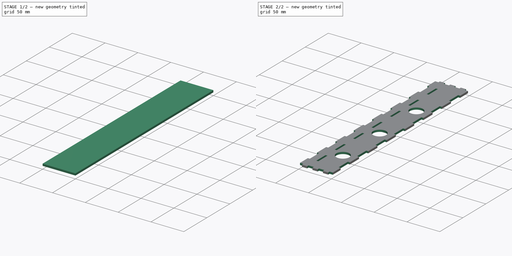
[diagram: build sequence overview — one tinted view per stage of 2, left to right]
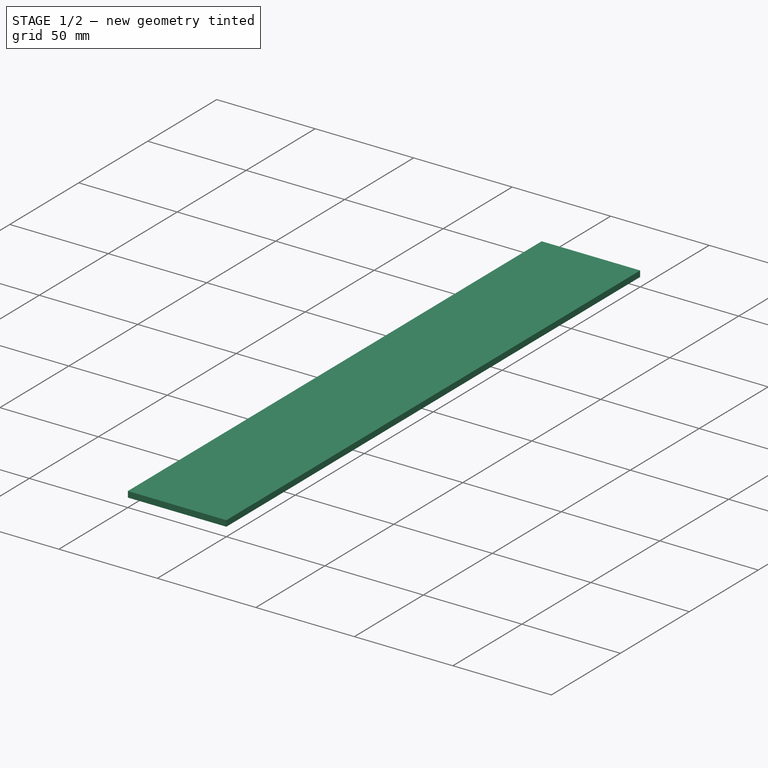
[diagram: stage 1 of 2 — iso view after this stage's code; geometry added in this stage tinted green]
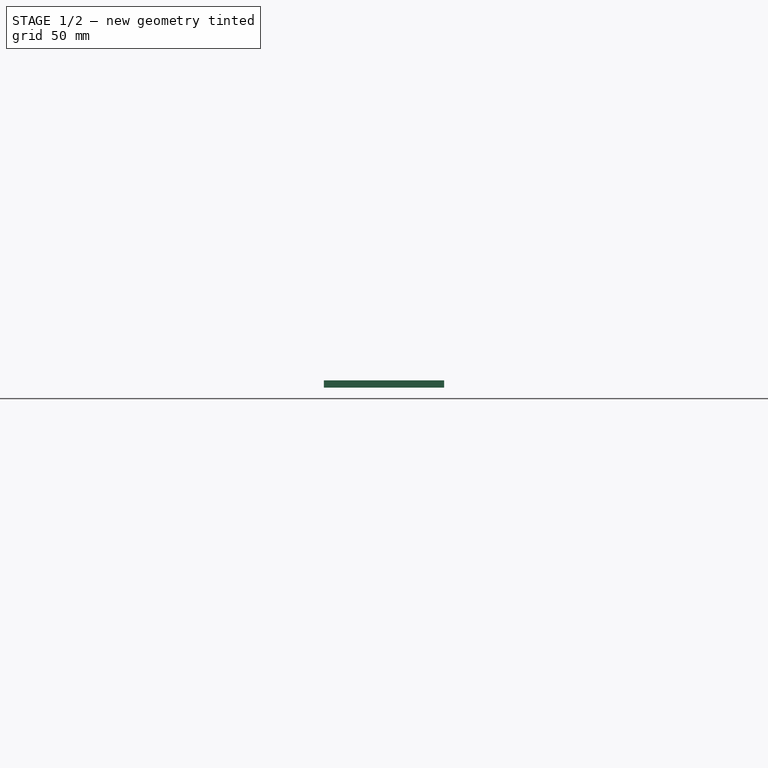
[diagram: stage 1 of 2 — front view after this stage's code; geometry added in this stage tinted green]
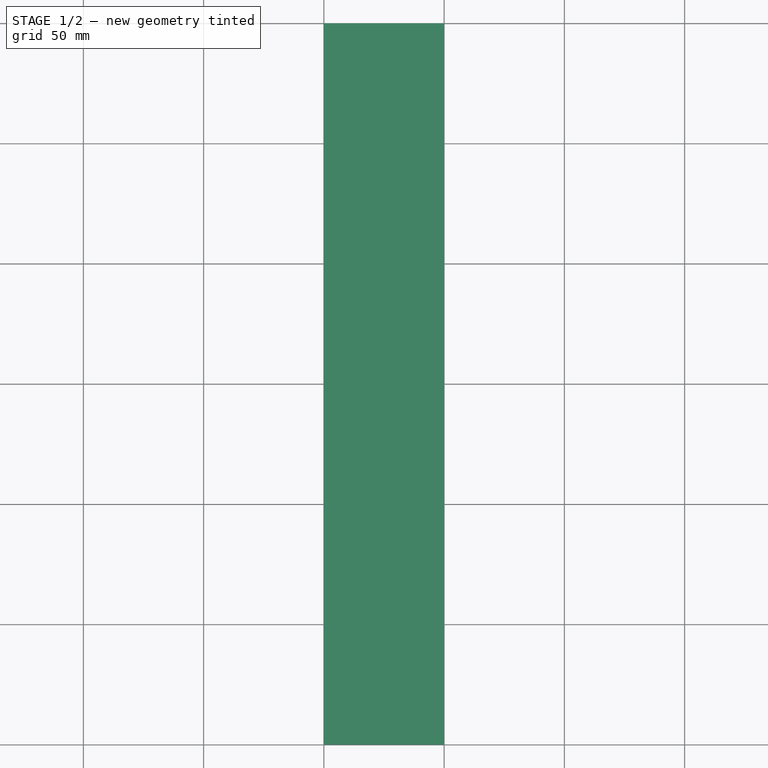
[diagram: stage 1 of 2 — top view after this stage's code; geometry added in this stage tinted green]
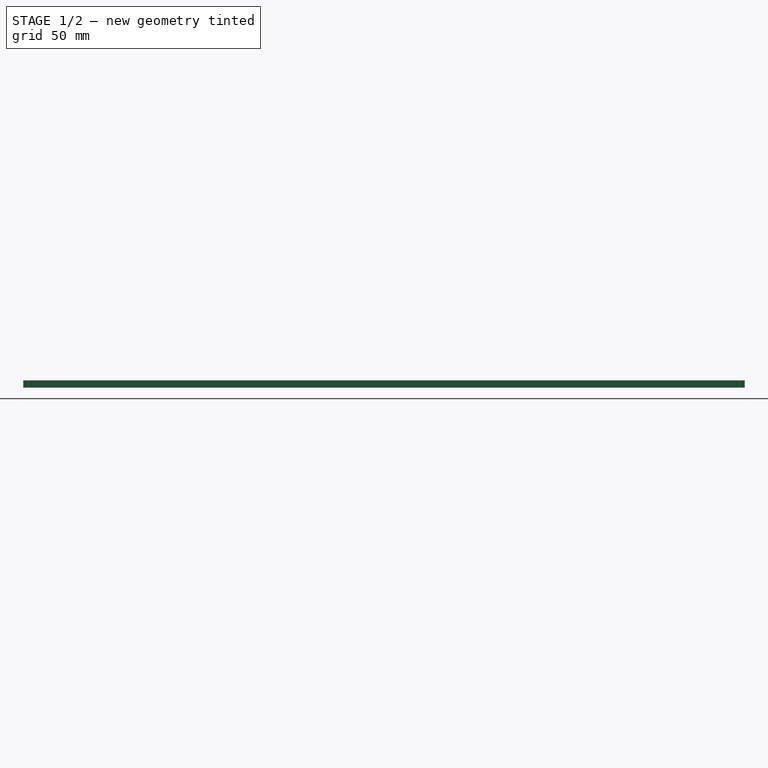
[diagram: stage 1 of 2 — right view after this stage's code; geometry added in this stage tinted green]
FCSTD DOCUMENT  (FreeCAD 0.19R24366 (Git))
Label: mdo-side
License: All rights reserved
LicenseURL: http://en.wikipedia.org/wiki/All_rights_reserved
objects: Sketcher::SketchObject×2, PartDesign::Pad×1, PartDesign::Pocket×1, PartDesign::Body×1, TechDraw::DrawSVGTemplate×1, TechDraw::DrawViewPart×1, TechDraw::DrawPage×1
note: 7 computed .brp shape members not serialized (recipe doc carries the construction recipe); baked Part::Feature solids carry a one-line shape summary decoded from their .brp

FEATURE [Sketcher::SketchObject] Sketch
  FullyConstrained = true
  MapMode = 5
  Support = -> [XY_Plane]
  sketch-geometry (4):
    g0: LineSegment StartX=0 StartY=0 StartZ=0 EndX=50 EndY=0 EndZ=0
    g1: LineSegment StartX=50 StartY=0 StartZ=0 EndX=50 EndY=300 EndZ=0
    g2: LineSegment StartX=50 StartY=300 StartZ=0 EndX=0 EndY=300 EndZ=0
    g3: LineSegment StartX=0 StartY=300 StartZ=0 EndX=0 EndY=0 EndZ=0
  constraints (11):
    c: Coincident(g0,g1)
    c: Coincident(g1,g2)
    c: Coincident(g2,g3)
    c: Coincident(g3,g0)
    c: Horizontal(g0)
    c: Horizontal(g2)
    c: Vertical(g1)
    c: Vertical(g3)
    c: Coincident(g0,g-1)
    c: DistanceX(g0,g0) = 50
    c: DistanceY(g1,g1) = 300
FEATURE [PartDesign::Pad] Pad
  Direction = (1,1,1)
  Length = 3
  Length2 = 100
  Profile = -> Sketch
  Type = 0
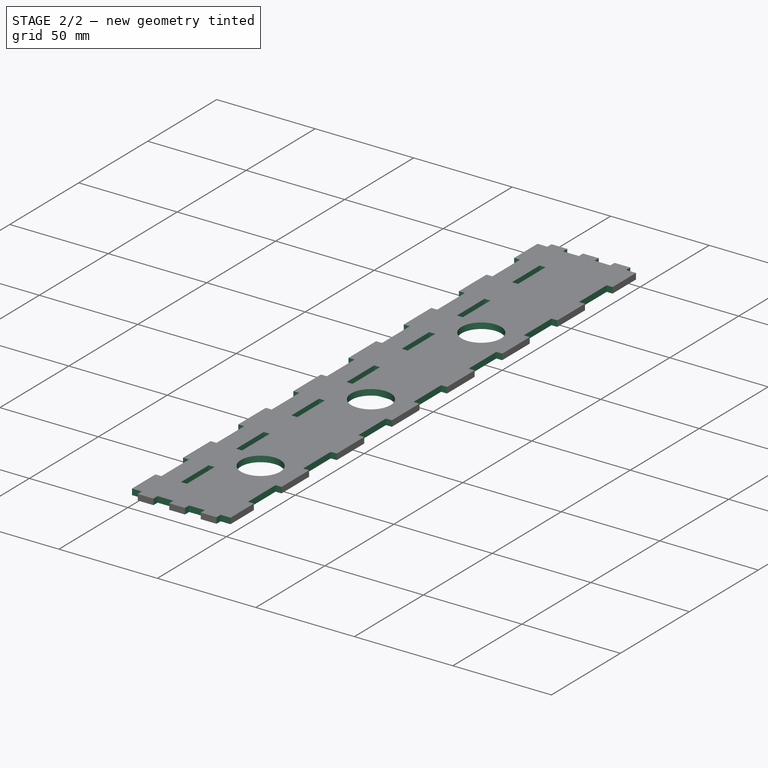
[diagram: stage 2 of 2 — iso view after this stage's code; geometry added in this stage tinted green]
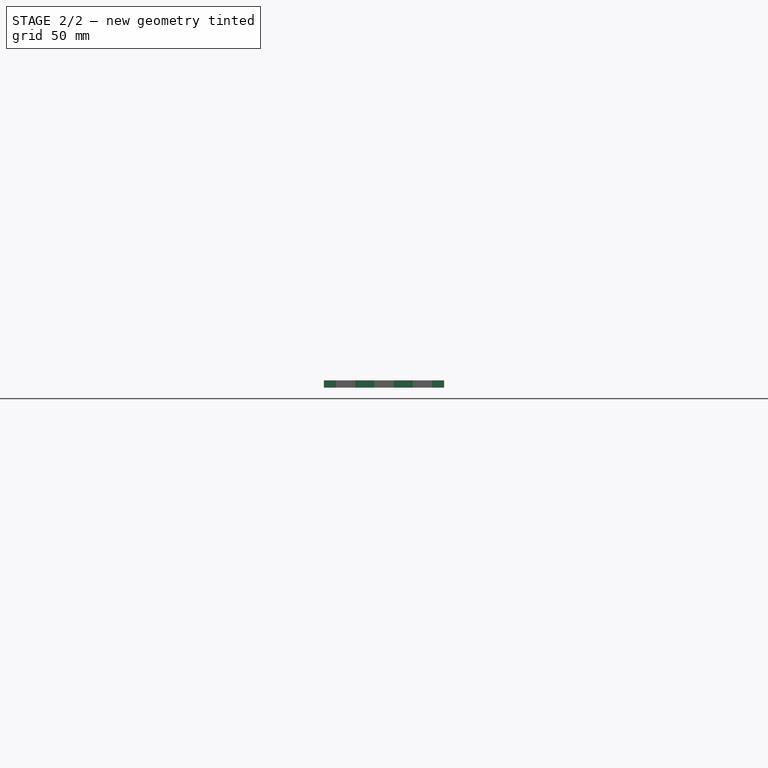
[diagram: stage 2 of 2 — front view after this stage's code; geometry added in this stage tinted green]
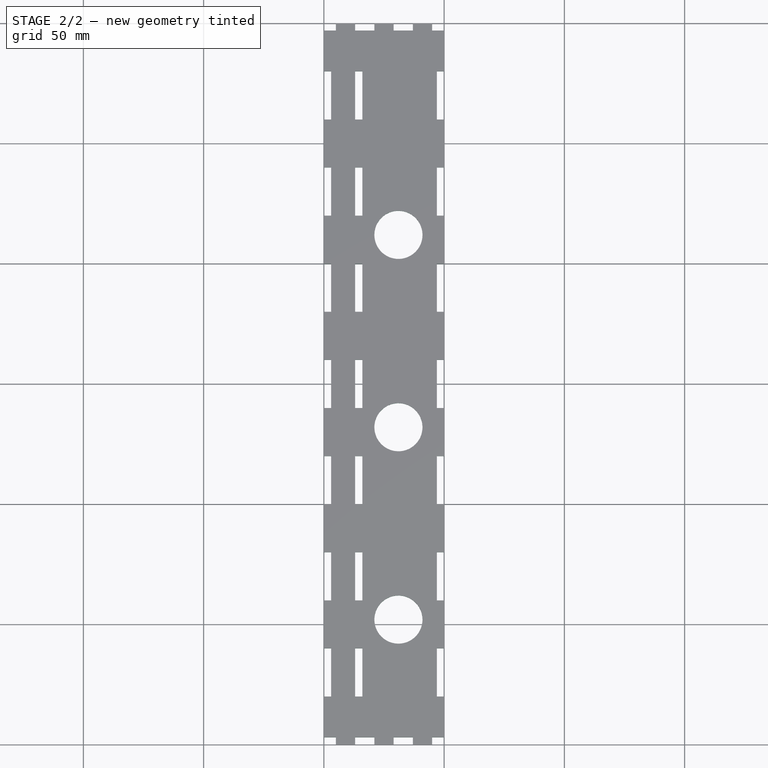
[diagram: stage 2 of 2 — top view after this stage's code; geometry added in this stage tinted green]
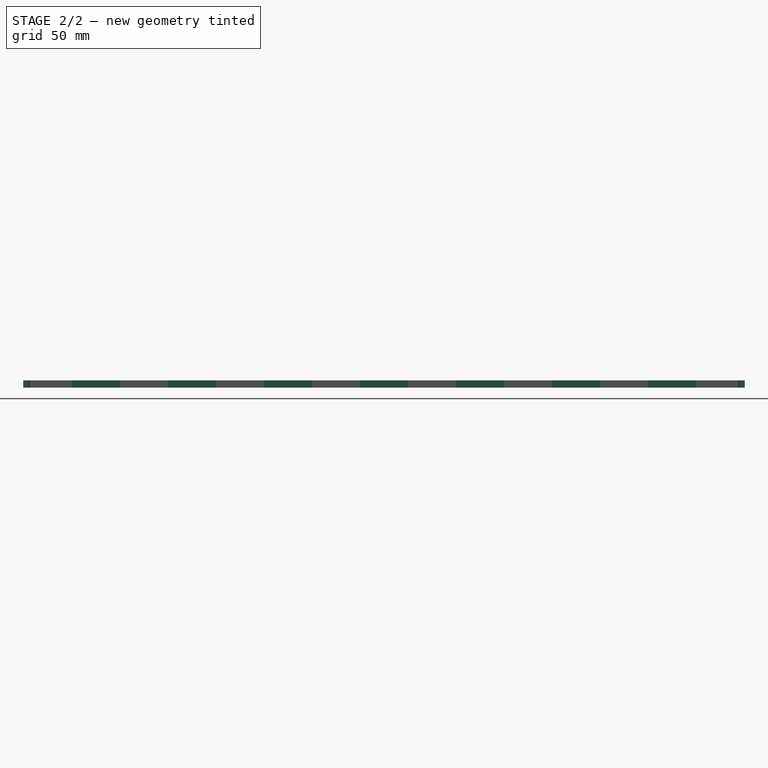
[diagram: stage 2 of 2 — right view after this stage's code; geometry added in this stage tinted green]
FEATURE [Sketcher::SketchObject] Sketch001
  FullyConstrained = true
  MapMode = 5
  Placement = pos=(0,0,3) rot=(0,0,1;0rad)
  Support = -> [Pad]
  sketch-geometry (145):
    g0: LineSegment StartX=0 StartY=40 StartZ=0 EndX=3 EndY=40 EndZ=0
    g1: LineSegment StartX=3 StartY=40 StartZ=0 EndX=3 EndY=20 EndZ=0
    g2: LineSegment StartX=3 StartY=20 StartZ=0 EndX=0 EndY=20 EndZ=0
    g3: LineSegment StartX=0 StartY=20 StartZ=0 EndX=0 EndY=40 EndZ=0
    g4: LineSegment StartX=2.7e-15 StartY=80 StartZ=0 EndX=3 EndY=80 EndZ=0
    g5: LineSegment StartX=3 StartY=80 StartZ=0 EndX=3 EndY=60 EndZ=0
    g6: LineSegment StartX=3 StartY=60 StartZ=0 EndX=2.7e-15 EndY=60 EndZ=0
    g7: LineSegment StartX=2.7e-15 StartY=60 StartZ=0 EndX=2.7e-15 EndY=80 EndZ=0
    g8: LineSegment StartX=0 StartY=40 StartZ=0 EndX=2.7e-15 EndY=80 EndZ=0
    g9: LineSegment StartX=4.9e-15 StartY=120 StartZ=0 EndX=3 EndY=120 EndZ=0
    g10: LineSegment StartX=3 StartY=120 StartZ=0 EndX=3 EndY=100 EndZ=0
    g11: LineSegment StartX=3 StartY=100 StartZ=0 EndX=4.9e-15 EndY=100 EndZ=0
    g12: LineSegment StartX=4.9e-15 StartY=100 StartZ=0 EndX=4.9e-15 EndY=120 EndZ=0
    g13: LineSegment StartX=2.7e-15 StartY=80 StartZ=0 EndX=4.9e-15 EndY=120 EndZ=0
    g14: LineSegment StartX=7.5e-15 StartY=160 StartZ=0 EndX=3 EndY=160 EndZ=0
    g15: LineSegment StartX=3 StartY=160 StartZ=0 EndX=3 EndY=140 EndZ=0
    g16: LineSegment StartX=3 StartY=140 StartZ=0 EndX=7.5e-15 EndY=140 EndZ=0
    g17: LineSegment StartX=7.5e-15 StartY=140 StartZ=0 EndX=7.5e-15 EndY=160 EndZ=0
    g18: LineSegment StartX=4.9e-15 StartY=120 StartZ=0 EndX=7.5e-15 EndY=160 EndZ=0
    g19: LineSegment StartX=9.8e-15 StartY=200 StartZ=0 EndX=3 EndY=200 EndZ=0
    g20: LineSegment StartX=3 StartY=200 StartZ=0 EndX=3 EndY=180 EndZ=0
    g21: LineSegment StartX=3 StartY=180 StartZ=0 EndX=9.8e-15 EndY=180 EndZ=0
    g22: LineSegment StartX=9.8e-15 StartY=180 StartZ=0 EndX=9.8e-15 EndY=200 EndZ=0
    g23: LineSegment StartX=7.5e-15 StartY=160 StartZ=0 EndX=9.8e-15 EndY=200 EndZ=0
    g24: LineSegment StartX=1.22e-14 StartY=240 StartZ=0 EndX=3 EndY=240 EndZ=0
    g25: LineSegment StartX=3 StartY=240 StartZ=0 EndX=3 EndY=220 EndZ=0
    g26: LineSegment StartX=3 StartY=220 StartZ=0 EndX=1.24e-14 EndY=220 EndZ=0
    g27: LineSegment StartX=1.22e-14 StartY=220 StartZ=0 EndX=1.22e-14 EndY=240 EndZ=0
    g28: LineSegment StartX=9.8e-15 StartY=200 StartZ=0 EndX=1.22e-14 EndY=240 EndZ=0
    g29: LineSegment StartX=1.47e-14 StartY=280 StartZ=0 EndX=3 EndY=280 EndZ=0
    g30: LineSegment StartX=3 StartY=280 StartZ=0 EndX=3 EndY=260 EndZ=0
    g31: LineSegment StartX=3 StartY=260 StartZ=0 EndX=1.47e-14 EndY=260 EndZ=0
    g32: LineSegment StartX=1.47e-14 StartY=260 StartZ=0 EndX=1.47e-14 EndY=280 EndZ=0
    g33: LineSegment StartX=1.22e-14 StartY=240 StartZ=0 EndX=1.47e-14 EndY=280 EndZ=0
    g34: LineSegment StartX=13 StartY=40 StartZ=0 EndX=16 EndY=40 EndZ=0
    g35: LineSegment StartX=16 StartY=40 StartZ=0 EndX=16 EndY=20 EndZ=0
    g36: LineSegment StartX=16 StartY=20 StartZ=0 EndX=13 EndY=20 EndZ=0
    g37: LineSegment StartX=13 StartY=20 StartZ=0 EndX=13 EndY=40 EndZ=0
    g38: LineSegment StartX=13 StartY=80 StartZ=0 EndX=16 EndY=80 EndZ=0
    g39: LineSegment StartX=16 StartY=80 StartZ=0 EndX=16 EndY=60 EndZ=0
    g40: LineSegment StartX=16 StartY=60 StartZ=0 EndX=13 EndY=60 EndZ=0
    g41: LineSegment StartX=13 StartY=60 StartZ=0 EndX=13 EndY=80 EndZ=0
    g42: LineSegment StartX=13 StartY=40 StartZ=0 EndX=13 EndY=80 EndZ=0
    g43: LineSegment StartX=13 StartY=120 StartZ=0 EndX=16 EndY=120 EndZ=0
    g44: LineSegment StartX=16 StartY=120 StartZ=0 EndX=16 EndY=100 EndZ=0
    g45: LineSegment StartX=16 StartY=100 StartZ=0 EndX=13 EndY=100 EndZ=0
    g46: LineSegment StartX=13 StartY=100 StartZ=0 EndX=13 EndY=120 EndZ=0
    g47: LineSegment StartX=13 StartY=80 StartZ=0 EndX=13 EndY=120 EndZ=0
    g48: LineSegment StartX=13 StartY=160 StartZ=0 EndX=16 EndY=160 EndZ=0
    g49: LineSegment StartX=16 StartY=160 StartZ=0 EndX=16 EndY=140 EndZ=0
    g50: LineSegment StartX=16 StartY=140 StartZ=0 EndX=13 EndY=140 EndZ=0
    g51: LineSegment StartX=13 StartY=140 StartZ=0 EndX=13 EndY=160 EndZ=0
    g52: LineSegment StartX=13 StartY=120 StartZ=0 EndX=13 EndY=160 EndZ=0
    g53: LineSegment StartX=13 StartY=200 StartZ=0 EndX=16 EndY=200 EndZ=0
    g54: LineSegment StartX=16 StartY=200 StartZ=0 EndX=16 EndY=180 EndZ=0
    g55: LineSegment StartX=16 StartY=180 StartZ=0 EndX=13 EndY=180 EndZ=0
    g56: LineSegment StartX=13 StartY=180 StartZ=0 EndX=13 EndY=200 EndZ=0
    g57: LineSegment StartX=13 StartY=160 StartZ=0 EndX=13 EndY=200 EndZ=0
    g58: LineSegment StartX=13 StartY=240 StartZ=0 EndX=16 EndY=240 EndZ=0
    g59: LineSegment StartX=16 StartY=240 StartZ=0 EndX=16 EndY=220 EndZ=0
    g60: LineSegment StartX=16 StartY=220 StartZ=0 EndX=13 EndY=220 EndZ=0
    g61: LineSegment StartX=13 StartY=220 StartZ=0 EndX=13 EndY=240 EndZ=0
    g62: LineSegment StartX=13 StartY=200 StartZ=0 EndX=13 EndY=240 EndZ=0
    g63: LineSegment StartX=13 StartY=280 StartZ=0 EndX=16 EndY=280 EndZ=0
    g64: LineSegment StartX=16 StartY=280 StartZ=0 EndX=16 EndY=260 EndZ=0
    g65: LineSegment StartX=16 StartY=260 StartZ=0 EndX=13 EndY=260 EndZ=0
    g66: LineSegment StartX=13 StartY=260 StartZ=0 EndX=13 EndY=280 EndZ=0
    g67: LineSegment StartX=13 StartY=240 StartZ=0 EndX=13 EndY=280 EndZ=0
    g68: LineSegment StartX=47 StartY=40 StartZ=0 EndX=50 EndY=40 EndZ=0
    g69: LineSegment StartX=50 StartY=40 StartZ=0 EndX=50 EndY=20 EndZ=0
    g70: LineSegment StartX=50 StartY=20 StartZ=0 EndX=47 EndY=20 EndZ=0
    g71: LineSegment StartX=47 StartY=20 StartZ=0 EndX=47 EndY=40 EndZ=0
    g72: LineSegment StartX=47 StartY=80 StartZ=0 EndX=50 EndY=80 EndZ=0
    g73: LineSegment StartX=50 StartY=80 StartZ=0 EndX=50 EndY=60 EndZ=0
    g74: LineSegment StartX=50 StartY=60 StartZ=0 EndX=47 EndY=60 EndZ=0
    g75: LineSegment StartX=47 StartY=60 StartZ=0 EndX=47 EndY=80 EndZ=0
    g76: LineSegment StartX=47 StartY=40 StartZ=0 EndX=47 EndY=80 EndZ=0
    g77: LineSegment StartX=47 StartY=120 StartZ=0 EndX=50 EndY=120 EndZ=0
    g78: LineSegment StartX=50 StartY=120 StartZ=0 EndX=50 EndY=100 EndZ=0
    g79: LineSegment StartX=50 StartY=100 StartZ=0 EndX=47 EndY=100 EndZ=0
    g80: LineSegment StartX=47 StartY=100 StartZ=0 EndX=47 EndY=120 EndZ=0
    g81: LineSegment StartX=47 StartY=80 StartZ=0 EndX=47 EndY=120 EndZ=0
    g82: LineSegment StartX=47 StartY=160 StartZ=0 EndX=50 EndY=160 EndZ=0
    g83: LineSegment StartX=50 StartY=160 StartZ=0 EndX=50 EndY=140 EndZ=0
    g84: LineSegment StartX=50 StartY=140 StartZ=0 EndX=47 EndY=140 EndZ=0
    g85: LineSegment StartX=47 StartY=140 StartZ=0 EndX=47 EndY=160 EndZ=0
    g86: LineSegment StartX=47 StartY=120 StartZ=0 EndX=47 EndY=160 EndZ=0
    g87: LineSegment StartX=47 StartY=200 StartZ=0 EndX=50 EndY=200 EndZ=0
    g88: LineSegment StartX=50 StartY=200 StartZ=0 EndX=50 EndY=180 EndZ=0
    g89: LineSegment StartX=50 StartY=180 StartZ=0 EndX=47 EndY=180 EndZ=0
    g90: LineSegment StartX=47 StartY=180 StartZ=0 EndX=47 EndY=200 EndZ=0
    g91: LineSegment StartX=47 StartY=160 StartZ=0 EndX=47 EndY=200 EndZ=0
    g92: LineSegment StartX=47 StartY=240 StartZ=0 EndX=50 EndY=240 EndZ=0
    g93: LineSegment StartX=50 StartY=240 StartZ=0 EndX=50 EndY=220 EndZ=0
    g94: LineSegment StartX=50 StartY=220 StartZ=0 EndX=47 EndY=220 EndZ=0
    g95: LineSegment StartX=47 StartY=220 StartZ=0 EndX=47 EndY=240 EndZ=0
    g96: LineSegment StartX=47 StartY=200 StartZ=0 EndX=47 EndY=240 EndZ=0
    g97: LineSegment StartX=47 StartY=280 StartZ=0 EndX=50 EndY=280 EndZ=0
    g98: LineSegment StartX=50 StartY=280 StartZ=0 EndX=50 EndY=260 EndZ=0
    g99: LineSegment StartX=50 StartY=260 StartZ=0 EndX=47 EndY=260 EndZ=0
    g100: LineSegment StartX=47 StartY=260 StartZ=0 EndX=47 EndY=280 EndZ=0
    g101: LineSegment StartX=47 StartY=240 StartZ=0 EndX=47 EndY=280 EndZ=0
    g102: LineSegment StartX=-3 StartY=3 StartZ=0 EndX=5 EndY=3 EndZ=0
    g103: LineSegment StartX=5 StartY=3 StartZ=0 EndX=5 EndY=0 EndZ=0
    g104: LineSegment StartX=5 StartY=0 StartZ=0 EndX=-3 EndY=0 EndZ=0
    g105: LineSegment StartX=-3 StartY=0 StartZ=0 EndX=-3 EndY=3 EndZ=0
    g106: LineSegment StartX=13 StartY=3 StartZ=0 EndX=21 EndY=3 EndZ=0
    g107: LineSegment StartX=21 StartY=3 StartZ=0 EndX=21 EndY=0 EndZ=0
    g108: LineSegment StartX=21 StartY=0 StartZ=0 EndX=13 EndY=0 EndZ=0
    g109: LineSegment StartX=13 StartY=0 StartZ=0 EndX=13 EndY=3 EndZ=0
    g110: LineSegment StartX=-3 StartY=3 StartZ=0 EndX=13 EndY=3 EndZ=0
    g111: LineSegment StartX=29 StartY=3 StartZ=0 EndX=37 EndY=3 EndZ=0
    g112: LineSegment StartX=37 StartY=3 StartZ=0 EndX=37 EndY=0 EndZ=0
    g113: LineSegment StartX=37 StartY=0 StartZ=0 EndX=29 EndY=0 EndZ=0
    g114: LineSegment StartX=29 StartY=0 StartZ=0 EndX=29 EndY=3 EndZ=0
    g115: LineSegment StartX=13 StartY=3 StartZ=0 EndX=29 EndY=3 EndZ=0
    g116: LineSegment StartX=45 StartY=3 StartZ=0 EndX=53 EndY=3 EndZ=0
    g117: LineSegment StartX=53 StartY=3 StartZ=0 EndX=53 EndY=0 EndZ=0
    g118: LineSegment StartX=53 StartY=0 StartZ=0 EndX=45 EndY=0 EndZ=0
    g119: LineSegment StartX=45 StartY=0 StartZ=0 EndX=45 EndY=3 EndZ=0
    g120: LineSegment StartX=29 StartY=3 StartZ=0 EndX=45 EndY=3 EndZ=0
    g121: LineSegment StartX=-3 StartY=300 StartZ=0 EndX=5 EndY=300 EndZ=0
    g122: LineSegment StartX=5 StartY=300 StartZ=0 EndX=5 EndY=297 EndZ=0
    g123: LineSegment StartX=5 StartY=297 StartZ=0 EndX=-3 EndY=297 EndZ=0
    g124: LineSegment StartX=-3 StartY=297 StartZ=0 EndX=-3 EndY=300 EndZ=0
    g125: LineSegment StartX=13 StartY=300 StartZ=0 EndX=21 EndY=300 EndZ=0
    g126: LineSegment StartX=21 StartY=300 StartZ=0 EndX=21 EndY=297 EndZ=0
    g127: LineSegment StartX=21 StartY=297 StartZ=0 EndX=13 EndY=297 EndZ=0
    g128: LineSegment StartX=13 StartY=297 StartZ=0 EndX=13 EndY=300 EndZ=0
    g129: LineSegment StartX=-3 StartY=300 StartZ=0 EndX=13 EndY=300 EndZ=0
    g130: LineSegment StartX=29 StartY=300 StartZ=0 EndX=37 EndY=300 EndZ=0
    g131: LineSegment StartX=37 StartY=300 StartZ=0 EndX=37 EndY=297 EndZ=0
    g132: LineSegment StartX=37 StartY=297 StartZ=0 EndX=29 EndY=297 EndZ=0
    g133: LineSegment StartX=29 StartY=297 StartZ=0 EndX=29 EndY=300 EndZ=0
    g134: LineSegment StartX=13 StartY=300 StartZ=0 EndX=29 EndY=300 EndZ=0
    g135: LineSegment StartX=45 StartY=300 StartZ=0 EndX=53 EndY=300 EndZ=0
    g136: LineSegment StartX=53 StartY=300 StartZ=0 EndX=53 EndY=297 EndZ=0
    g137: LineSegment StartX=53 StartY=297 StartZ=0 EndX=45 EndY=297 EndZ=0
    g138: LineSegment StartX=45 StartY=297 StartZ=0 EndX=45 EndY=300 EndZ=0
    g139: LineSegment StartX=29 StartY=300 StartZ=0 EndX=45 EndY=300 EndZ=0
    g140: Circle CenterX=31 CenterY=52 CenterZ=0 NormalX=0 NormalY=0 NormalZ=1 AngleXU=0 Radius=10
    g141: Circle CenterX=31 CenterY=132 CenterZ=0 NormalX=0 NormalY=0 NormalZ=1 AngleXU=0 Radius=10
    g142: LineSegment StartX=31 StartY=52 StartZ=0 EndX=31 EndY=132 EndZ=0
    g143: Circle CenterX=31 CenterY=212 CenterZ=0 NormalX=0 NormalY=0 NormalZ=1 AngleXU=0 Radius=10
    g144: LineSegment StartX=31 StartY=132 StartZ=0 EndX=31 EndY=212 EndZ=0
  constraints (409):
    c: Coincident(g0,g1)
    c: Coincident(g1,g2)
    c: Coincident(g2,g3)
    c: Coincident(g3,g0)
    c: Horizontal(g0)
    c: Horizontal(g2)
    c: Vertical(g1)
    c: Vertical(g3)
    c: PointOnObject(g0,g-2)
    c: DistanceX(g2,g2) = 3
    c: DistanceY(g1,g1) = 20
    c: Coincident(g4,g5)
    c: Coincident(g5,g6)
    c: Coincident(g6,g7)
    c: Coincident(g7,g4)
    c: Horizontal(g4)
    c: Horizontal(g6)
    c: Vertical(g5)
    c: Vertical(g7)
    c: Equal(g2,g6) = 3
    c: Equal(g1,g5) = 20
    c: Coincident(g0,g8)
    c: Coincident(g4,g8)
    c: Distance(g8) = 40
    c: Angle(g8) = 1.5708
    c: Coincident(g9,g10)
    c: Coincident(g10,g11)
    c: Coincident(g11,g12)
    c: Coincident(g12,g9)
    c: Horizontal(g9)
    c: Horizontal(g11)
    c: Vertical(g10)
    c: Vertical(g12)
    c: Equal(g2,g11) = 3
    c: Equal(g1,g10) = 20
    c: Coincident(g4,g13)
    c: Coincident(g9,g13)
    c: Equal(g8,g13)
    c: Parallel(g13,g8)
    c: Coincident(g14,g15)
    c: Coincident(g15,g16)
    c: Coincident(g16,g17)
    c: Coincident(g17,g14)
    c: Horizontal(g14)
    c: Horizontal(g16)
    c: Vertical(g15)
    c: Vertical(g17)
    c: Equal(g2,g16) = 3
    c: Equal(g1,g15) = 20
    c: Coincident(g9,g18)
    c: Coincident(g14,g18)
    c: Equal(g8,g18)
    c: Parallel(g18,g8)
    c: Coincident(g19,g20)
    c: Coincident(g20,g21)
    c: Coincident(g21,g22)
    c: Coincident(g22,g19)
    c: Horizontal(g19)
    c: Horizontal(g21)
    c: Vertical(g20)
    c: Vertical(g22)
    c: Equal(g2,g21) = 3
    c: Equal(g1,g20) = 20
    c: Coincident(g14,g23)
    c: Coincident(g19,g23)
    c: Equal(g8,g23)
    c: Parallel(g23,g8)
    c: Coincident(g24,g25)
    c: Coincident(g25,g26)
    c: Coincident(g26,g27)
    c: Coincident(g27,g24)
    c: Horizontal(g24)
    c: Horizontal(g26)
    c: Vertical(g25)
    c: Vertical(g27)
    c: Equal(g2,g26) = 3
    c: Equal(g1,g25) = 20
    c: Coincident(g19,g28)
    c: Coincident(g24,g28)
    c: Equal(g8,g28)
    c: Parallel(g28,g8)
    c: Coincident(g29,g30)
    c: Coincident(g30,g31)
    c: Coincident(g31,g32)
    c: Coincident(g32,g29)
    c: Horizontal(g29)
    c: Horizontal(g31)
    c: Vertical(g30)
    c: Vertical(g32)
    c: Equal(g2,g31) = 3
    c: Equal(g1,g30) = 20
    c: Coincident(g24,g33)
    c: Coincident(g29,g33)
    c: Equal(g8,g33)
    c: Parallel(g33,g8)
    c: Coincident(g34,g35)
    c: Coincident(g35,g36)
    c: Coincident(g36,g37)
    c: Coincident(g37,g34)
    c: Horizontal(g34)
    c: Horizontal(g36)
    c: Vertical(g35)
    c: Vertical(g37)
    c: Equal(g2,g36) = 3
    c: Equal(g1,g35) = 20
    c: Coincident(g38,g39)
    c: Coincident(g39,g40)
    c: Coincident(g40,g41)
    c: Coincident(g41,g38)
    c: Horizontal(g38)
    c: Horizontal(g40)
    c: Vertical(g39)
    c: Vertical(g41)
    c: Equal(g36,g40) = 3
    c: Equal(g35,g39) = 20
    c: Coincident(g34,g42)
    c: Coincident(g38,g42)
    c: Equal(g8,g42) = 40
    c: Parallel(g8,g42) = 1.5708
    c: Coincident(g43,g44)
    c: Coincident(g44,g45)
    c: Coincident(g45,g46)
    c: Coincident(g46,g43)
    c: Horizontal(g43)
    c: Horizontal(g45)
    c: Vertical(g44)
    c: Vertical(g46)
    c: Equal(g36,g45) = 3
    c: Equal(g35,g44) = 20
    c: Coincident(g38,g47)
    c: Coincident(g43,g47)
    c: Equal(g42,g47)
    c: Parallel(g47,g42)
    c: Coincident(g48,g49)
    c: Coincident(g49,g50)
    c: Coincident(g50,g51)
    c: Coincident(g51,g48)
    c: Horizontal(g48)
    c: Horizontal(g50)
    c: Vertical(g49)
    c: Vertical(g51)
    c: Equal(g36,g50) = 3
    c: Equal(g35,g49) = 20
    c: Coincident(g43,g52)
    c: Coincident(g48,g52)
    c: Equal(g42,g52)
    c: Parallel(g52,g42)
    c: Coincident(g53,g54)
    c: Coincident(g54,g55)
    c: Coincident(g55,g56)
    c: Coincident(g56,g53)
    c: Horizontal(g53)
    c: Horizontal(g55)
    c: Vertical(g54)
    c: Vertical(g56)
    c: Equal(g36,g55) = 3
    c: Equal(g35,g54) = 20
    c: Coincident(g48,g57)
    c: Coincident(g53,g57)
    c: Equal(g42,g57)
    c: Parallel(g57,g42)
    c: Coincident(g58,g59)
    c: Coincident(g59,g60)
    c: Coincident(g60,g61)
    c: Coincident(g61,g58)
    c: Horizontal(g58)
    c: Horizontal(g60)
    c: Vertical(g59)
    c: Vertical(g61)
    c: Equal(g36,g60) = 3
    c: Equal(g35,g59) = 20
    c: Coincident(g53,g62)
    c: Coincident(g58,g62)
    c: Equal(g42,g62)
    c: Parallel(g62,g42)
    c: Coincident(g63,g64)
    c: Coincident(g64,g65)
    c: Coincident(g65,g66)
    c: Coincident(g66,g63)
    c: Horizontal(g63)
    c: Horizontal(g65)
    c: Vertical(g64)
    c: Vertical(g66)
    c: Equal(g36,g65) = 3
    c: Equal(g35,g64) = 20
    c: Coincident(g58,g67)
    c: Coincident(g63,g67)
    c: Equal(g42,g67)
    c: Parallel(g67,g42)
    c: DistanceY(g29,g63) = 0
    c: DistanceX(g29,g63) = 10
    c: Coincident(g68,g69)
    c: Coincident(g69,g70)
    c: Coincident(g70,g71)
    c: Coincident(g71,g68)
    c: Horizontal(g68)
    c: Horizontal(g70)
    c: Vertical(g69)
    c: Vertical(g71)
    c: Equal(g2,g70) = 3
    c: Equal(g1,g69) = 20
    c: Coincident(g72,g73)
    c: Coincident(g73,g74)
    c: Coincident(g74,g75)
    c: Coincident(g75,g72)
    c: Horizontal(g72)
    c: Horizontal(g74)
    c: Vertical(g73)
    c: Vertical(g75)
    c: Equal(g70,g74) = 3
    c: Equal(g69,g73) = 20
    c: Coincident(g68,g76)
    c: Coincident(g72,g76)
    c: Equal(g8,g76) = 40
    c: Parallel(g8,g76) = 1.5708
    c: Coincident(g77,g78)
    c: Coincident(g78,g79)
    c: Coincident(g79,g80)
    c: Coincident(g80,g77)
    c: Horizontal(g77)
    c: Horizontal(g79)
    c: Vertical(g78)
    c: Vertical(g80)
    c: Equal(g70,g79) = 3
    c: Equal(g69,g78) = 20
    c: Coincident(g72,g81)
    c: Coincident(g77,g81)
    c: Equal(g76,g81)
    c: Parallel(g81,g76)
    c: Coincident(g82,g83)
    c: Coincident(g83,g84)
    c: Coincident(g84,g85)
    c: Coincident(g85,g82)
    c: Horizontal(g82)
    c: Horizontal(g84)
    c: Vertical(g83)
    c: Vertical(g85)
    c: Equal(g70,g84) = 3
    c: Equal(g69,g83) = 20
    c: Coincident(g77,g86)
    c: Coincident(g82,g86)
    c: Equal(g76,g86)
    c: Parallel(g86,g76)
    c: Coincident(g87,g88)
    c: Coincident(g88,g89)
    c: Coincident(g89,g90)
    c: Coincident(g90,g87)
    c: Horizontal(g87)
    c: Horizontal(g89)
    c: Vertical(g88)
    c: Vertical(g90)
    c: Equal(g70,g89) = 3
    c: Equal(g69,g88) = 20
    c: Coincident(g82,g91)
    c: Coincident(g87,g91)
    c: Equal(g76,g91)
    c: Parallel(g91,g76)
    c: Coincident(g92,g93)
    c: Coincident(g93,g94)
    c: Coincident(g94,g95)
    c: Coincident(g95,g92)
    c: Horizontal(g92)
    c: Horizontal(g94)
    c: Vertical(g93)
    c: Vertical(g95)
    c: Equal(g70,g94) = 3
    c: Equal(g69,g93) = 20
    c: Coincident(g87,g96)
    c: Coincident(g92,g96)
    c: Equal(g76,g96)
    c: Parallel(g96,g76)
    c: Coincident(g97,g98)
    c: Coincident(g98,g99)
    c: Coincident(g99,g100)
    c: Coincident(g100,g97)
    c: Horizontal(g97)
    c: Horizontal(g99)
    c: Vertical(g98)
    c: Vertical(g100)
    c: Equal(g70,g99) = 3
    c: Equal(g69,g98) = 20
    c: Coincident(g92,g101)
    c: Coincident(g97,g101)
    c: Equal(g76,g101)
    c: Parallel(g101,g76)
    c: DistanceX(g29,g97) = 50
    c: DistanceY(g63,g97) = 0
    c: DistanceY(g-1,g2) = 20
    c: Coincident(g102,g103)
    c: Coincident(g103,g104)
    c: Coincident(g104,g105)
    c: Coincident(g105,g102)
    c: Horizontal(g102)
    c: Horizontal(g104)
    c: Vertical(g103)
    c: Vertical(g105)
    c: PointOnObject(g103,g-1)
    c: DistanceY(g103,g103) = 3
    c: DistanceX(g102,g102) = 8
    c: DistanceX(g-1,g104) = -3
    c: Coincident(g106,g107)
    c: Coincident(g107,g108)
    c: Coincident(g108,g109)
    c: Coincident(g109,g106)
    c: Horizontal(g106)
    c: Horizontal(g108)
    c: Vertical(g107)
    c: Vertical(g109)
    c: Equal(g103,g107) = 3
    c: Equal(g102,g106) = 8
    c: Coincident(g102,g110)
    c: Coincident(g106,g110)
    c: Distance(g110) = 16
    c: Angle(g110) = 0
    c: Coincident(g111,g112)
    c: Coincident(g112,g113)
    c: Coincident(g113,g114)
    c: Coincident(g114,g111)
    c: Horizontal(g111)
    c: Horizontal(g113)
    c: Vertical(g112)
    c: Vertical(g114)
    c: Equal(g103,g112) = 3
    c: Equal(g102,g111) = 8
    c: Coincident(g106,g115)
    c: Coincident(g111,g115)
    c: Equal(g110,g115)
    c: Parallel(g115,g110)
    c: Coincident(g116,g117)
    c: Coincident(g117,g118)
    c: Coincident(g118,g119)
    c: Coincident(g119,g116)
    c: Horizontal(g116)
    c: Horizontal(g118)
    c: Vertical(g117)
    c: Vertical(g119)
    c: Equal(g103,g117) = 3
    c: Equal(g102,g116) = 8
    c: Coincident(g111,g120)
    c: Coincident(g116,g120)
    c: Equal(g110,g120)
    c: Parallel(g120,g110)
    c: Coincident(g121,g122)
    c: Coincident(g122,g123)
    c: Coincident(g123,g124)
    c: Coincident(g124,g121)
    c: Horizontal(g121)
    c: Horizontal(g123)
    c: Vertical(g122)
    c: Vertical(g124)
    c: Equal(g103,g122) = 3
    c: Equal(g102,g121) = 8
    c: Coincident(g125,g126)
    c: Coincident(g126,g127)
    c: Coincident(g127,g128)
    c: Coincident(g128,g125)
    c: Horizontal(g125)
    c: Horizontal(g127)
    c: Vertical(g126)
    c: Vertical(g128)
    c: Equal(g122,g126) = 3
    c: Equal(g121,g125) = 8
    c: Coincident(g121,g129)
    c: Coincident(g125,g129)
    c: Equal(g110,g129) = 16
    c: Parallel(g110,g129)
    c: Coincident(g130,g131)
    c: Coincident(g131,g132)
    c: Coincident(g132,g133)
    c: Coincident(g133,g130)
    c: Horizontal(g130)
    c: Horizontal(g132)
    c: Vertical(g131)
    c: Vertical(g133)
    c: Equal(g122,g131) = 3
    c: Equal(g121,g130) = 8
    c: Coincident(g125,g134)
    c: Coincident(g130,g134)
    c: Equal(g129,g134)
    c: Parallel(g134,g129)
    c: Coincident(g135,g136)
    c: Coincident(g136,g137)
    c: Coincident(g137,g138)
    c: Coincident(g138,g135)
    c: Horizontal(g135)
    c: Horizontal(g137)
    c: Vertical(g136)
    c: Vertical(g138)
    c: Equal(g122,g136) = 3
    c: Equal(g121,g135) = 8
    c: Coincident(g130,g139)
    c: Coincident(g135,g139)
    c: Equal(g129,g139)
    c: Parallel(g139,g129)
    c: DistanceX(g104,g123) = 0
    c: DistanceY(g104,g121) = 300
    c: Radius(g140) = 10
    c: DistanceX(g39,g140) = 15
    c: DistanceY(g140,g39) = 8
    c: Equal(g140,g141) = 10
    c: Coincident(g140,g142)
    c: Coincident(g141,g142)
    c: Distance(g142) = 80
    c: Angle(g142) = 1.5708
    c: Equal(g140,g143) = 10
    c: Coincident(g141,g144)
    c: Coincident(g143,g144)
    c: Equal(g142,g144)
    c: Parallel(g144,g142)
FEATURE [PartDesign::Pocket] Pocket
  BaseFeature = -> Pad
  Length = 5
  Length2 = 100
  Profile = -> Sketch001
  Type = 1
FEATURE [PartDesign::Body] Body
  Group = -> [Sketch,Pad,Sketch001,Pocket]
  Origin = -> Origin
  Tip = -> Pocket
FEATURE [TechDraw::DrawSVGTemplate] Template
  EditableTexts = AUTHOR_NAME=AUTHOR NAME; DN=DN; DRAWING_TITLE=DRAWING TITLE; FC-DATE=DD/MM/YYYY; FC-REV=REV A; FC-SC=SCALE; FC-SH=X / Y; FC-SI=A2; FreeCAD_DRAWING=FreeCAD DRAWING; PN=PN
  Height = 420
  Orientation = 1
  Width = 594
FEATURE [TechDraw::DrawViewPart] View
  CoarseView = false
  Direction = (0,0,1)
  Focus = 100
  HardHidden = false
  IsoCount = 0
  IsoHidden = false
  IsoVisible = false
  LockPosition = false
  Perspective = false
  Rotation = 0
  ScaleType = 0
  SeamHidden = false
  SeamVisible = true
  SmoothHidden = false
  SmoothVisible = true
  Source = -> [Body]
  X = 297
  XDirection = (1,0,0)
  Y = 210
FEATURE [TechDraw::DrawPage] Page
  KeepUpdated = true
  NextBalloonIndex = 1
  ProjectionType = 0
  Template = -> Template
  Views = -> [View]
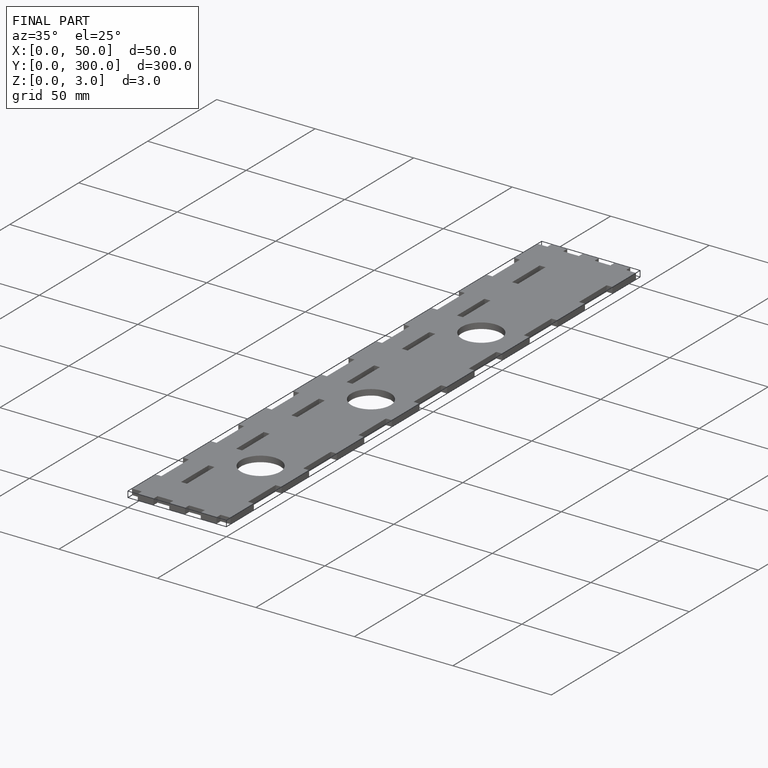
[diagram: finished part — iso view with bounding-box wireframe]
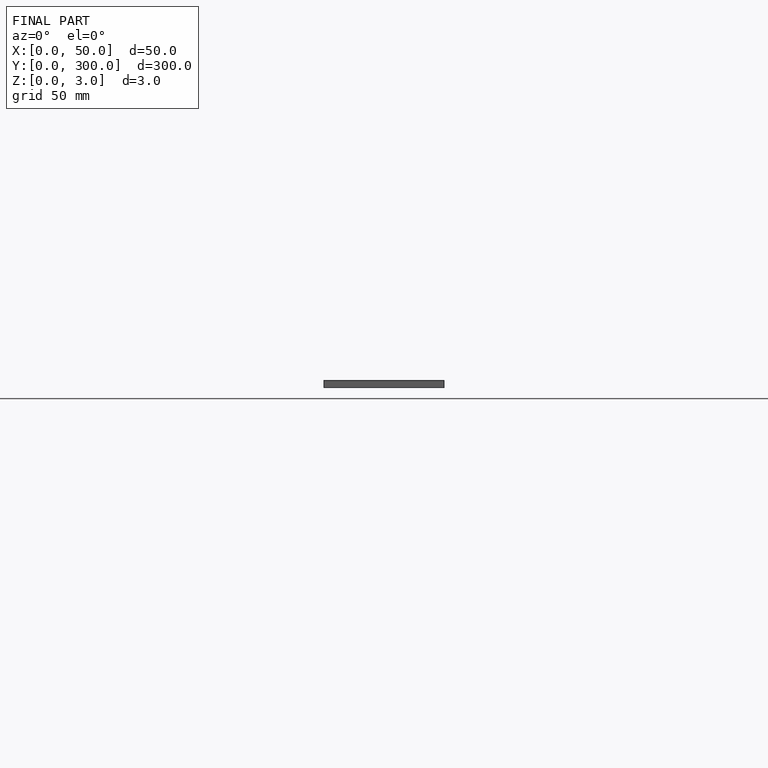
[diagram: finished part — front view with bounding-box wireframe]
